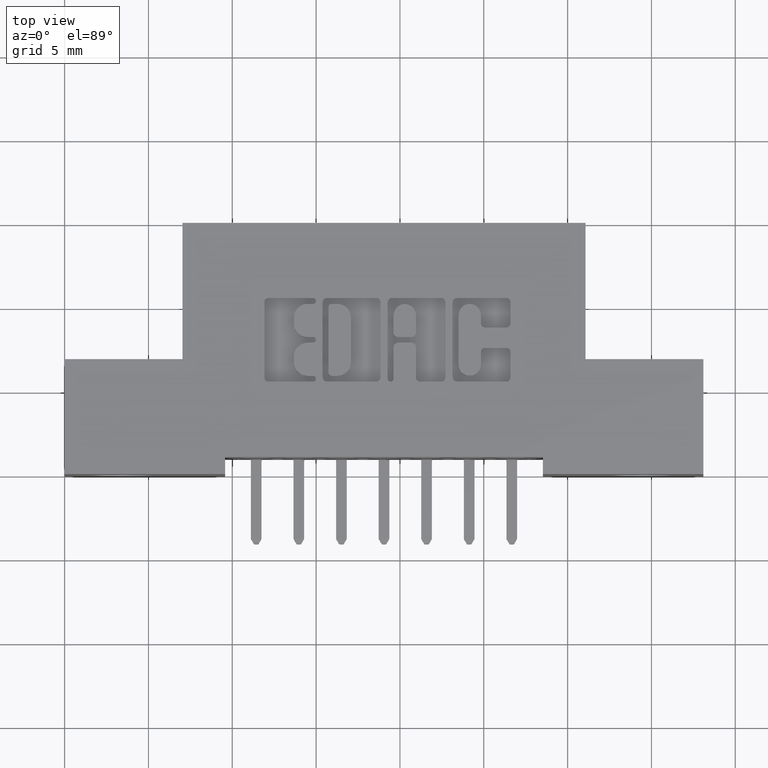
[diagram: clean part render]
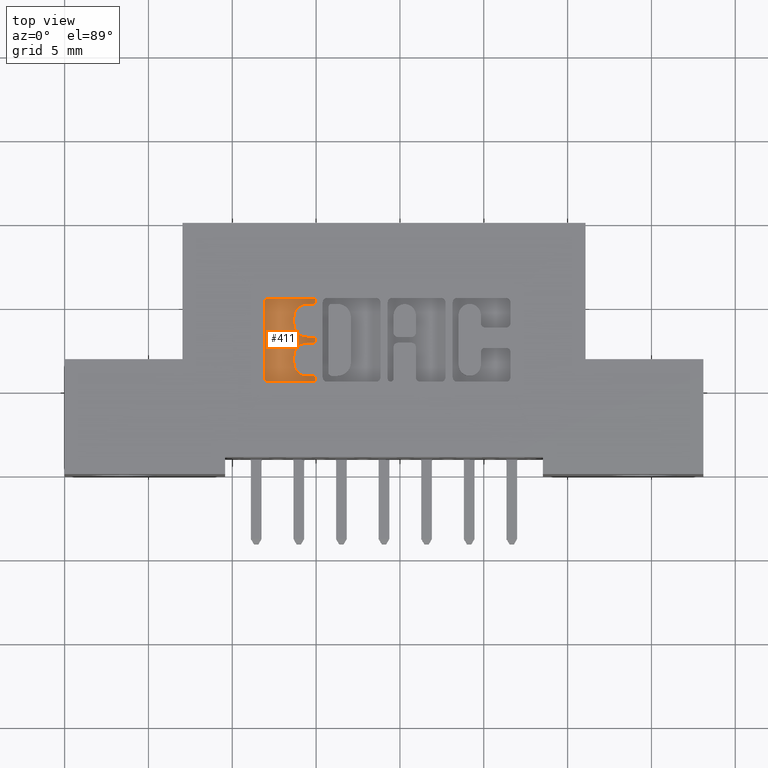
[diagram: same view with one face highlighted and labeled with its STEP entity id]
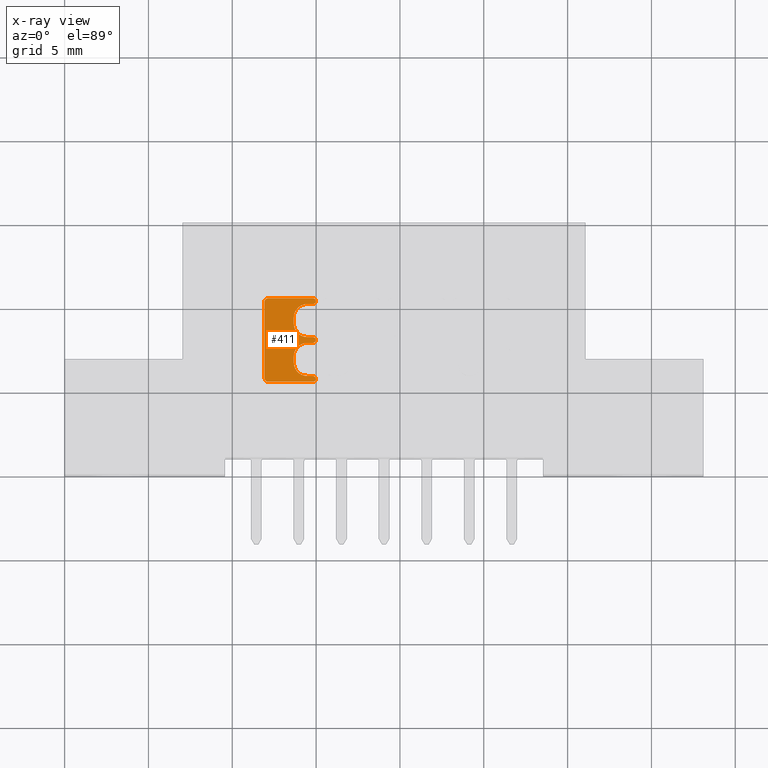
[diagram: x-ray of the same camera — body ghosted, the highlighted face saturated]
A machine part, top view. The second image highlights one B-rep face of the part: STEP entity #411.
The next image is the same camera in x-ray: the body ghosted, the highlighted face saturated — about 0% of this face is hidden behind the body in this view.
In plain terms, the highlighted planar face has unit normal (0, 0, 1).
Its self-contained STEP definition (entity closure, byte-faithful):
#50 = CARTESIAN_POINT ( 'NONE',  ( 0.5382269153529095600, 0.3532811137948583300, -0.01000000000000000000 ) ) ;
#58 = CIRCLE ( 'NONE', #2362, 0.03141014465217447500 ) ;
#129 = LINE ( 'NONE', #4063, #8107 ) ;
#167 = EDGE_LOOP ( 'NONE', ( #1020, #7557, #2675, #479, #7721, #1070, #2965, #7996, #667, #1128, #3104, #3904, #5091, #6752, #3723, #6283, #3916, #9225, #329, #2464, #903 ) ) ;
#240 = VECTOR ( 'NONE', #9830, 39.37007874015748100 ) ;
#247 = AXIS2_PLACEMENT_3D ( 'NONE', #6889, #2232, #7609 ) ;
#329 = ORIENTED_EDGE ( 'NONE', *, *, #7028, .T. ) ;
#382 = DIRECTION ( 'NONE',  ( -0.0000000000000000000, 0.0000000000000000000, 1.000000000000000000 ) ) ;
#411 = ADVANCED_FACE ( 'NONE', ( #5634 ), #5340, .T. ) ;
#479 = ORIENTED_EDGE ( 'NONE', *, *, #4244, .T. ) ;
#484 = EDGE_CURVE ( 'NONE', #2633, #4124, #5283, .T. ) ;
#516 = LINE ( 'NONE', #1669, #8477 ) ;
#594 = VERTEX_POINT ( 'NONE', #7124 ) ;
#667 = ORIENTED_EDGE ( 'NONE', *, *, #484, .T. ) ;
#701 = EDGE_CURVE ( 'NONE', #5477, #9557, #733, .T. ) ;
#709 = DIRECTION ( 'NONE',  ( 1.000000000000000000, 0.0000000000000000000, 0.0000000000000000000 ) ) ;
#733 = CIRCLE ( 'NONE', #8292, 0.03141014465215624000 ) ;
#781 = LINE ( 'NONE', #9266, #8730 ) ;
#845 = DIRECTION ( 'NONE',  ( -0.0000000000000000000, 0.0000000000000000000, 1.000000000000000000 ) ) ;
#889 = DIRECTION ( 'NONE',  ( -1.000000000000000000, 0.0000000000000000000, 0.0000000000000000000 ) ) ;
#903 = ORIENTED_EDGE ( 'NONE', *, *, #1353, .T. ) ;
#928 = CARTESIAN_POINT ( 'NONE',  ( 0.5831336065353512900, 0.4062857328953862800, -0.01000000000000000000 ) ) ;
#1006 = DIRECTION ( 'NONE',  ( 1.000000000000000000, 0.0000000000000000000, 0.0000000000000000000 ) ) ;
#1013 = VECTOR ( 'NONE', #889, 39.37007874015748100 ) ;
#1020 = ORIENTED_EDGE ( 'NONE', *, *, #2777, .F. ) ;
#1070 = ORIENTED_EDGE ( 'NONE', *, *, #5248, .T. ) ;
#1083 = AXIS2_PLACEMENT_3D ( 'NONE', #1100, #382, #6671 ) ;
#1097 = AXIS2_PLACEMENT_3D ( 'NONE', #1199, #6656, #2001 ) ;
#1100 = CARTESIAN_POINT ( 'NONE',  ( 0.0000000000000000000, 0.0000000000000000000, -0.01000000000000000000 ) ) ;
#1128 = ORIENTED_EDGE ( 'NONE', *, *, #4386, .T. ) ;
#1144 = EDGE_CURVE ( 'NONE', #3975, #3462, #3085, .T. ) ;
#1146 = CARTESIAN_POINT ( 'NONE',  ( 0.5831336065353512900, 0.4062857328953862800, -0.01000000000000000000 ) ) ;
#1188 = CIRCLE ( 'NONE', #1097, 0.006870969142663527000 ) ;
#1199 = CARTESIAN_POINT ( 'NONE',  ( 0.5831336065353099900, 0.3150000000000203200, -0.01000000000000000000 ) ) ;
#1224 = EDGE_CURVE ( 'NONE', #7891, #3462, #8441, .T. ) ;
#1241 = VERTEX_POINT ( 'NONE', #50 ) ;
#1269 = EDGE_CURVE ( 'NONE', #4696, #7891, #2098, .T. ) ;
#1308 = CIRCLE ( 'NONE', #7501, 0.03141014465221592800 ) ;
#1353 = EDGE_CURVE ( 'NONE', #1241, #6741, #7281, .T. ) ;
#1434 = DIRECTION ( 'NONE',  ( 1.000000000000000000, 0.0000000000000000000, 0.0000000000000000000 ) ) ;
#1640 = CARTESIAN_POINT ( 'NONE',  ( 0.5900045756779734900, 0.3150000000000203200, -0.01000000000000000000 ) ) ;
#1669 = CARTESIAN_POINT ( 'NONE',  ( 0.0000000000000000000, 0.3218709691426838700, -0.01000000000000000000 ) ) ;
#1729 = DIRECTION ( 'NONE',  ( 1.000000000000000000, 0.0000000000000000000, 0.0000000000000000000 ) ) ;
#1818 = CARTESIAN_POINT ( 'NONE',  ( 0.4788421106199379800, 0.4131567020380327300, -0.01000000000000000000 ) ) ;
#1907 = CIRCLE ( 'NONE', #4529, 0.006870969142648501700 ) ;
#1935 = DIRECTION ( 'NONE',  ( 1.000000000000000000, 0.0000000000000000000, 0.0000000000000000000 ) ) ;
#1940 = DIRECTION ( 'NONE',  ( 1.000000000000000000, 0.0000000000000000000, 0.0000000000000000000 ) ) ;
#2001 = DIRECTION ( 'NONE',  ( 1.000000000000000000, 0.0000000000000000000, 0.0000000000000000000 ) ) ;
#2098 = CIRCLE ( 'NONE', #7933, 0.006870969142662229500 ) ;
#2175 = EDGE_CURVE ( 'NONE', #8711, #7300, #4412, .T. ) ;
#2232 = DIRECTION ( 'NONE',  ( -0.0000000000000000000, 0.0000000000000000000, 1.000000000000000000 ) ) ;
#2339 = VERTEX_POINT ( 'NONE', #3387 ) ;
#2362 = AXIS2_PLACEMENT_3D ( 'NONE', #9851, #5404, #709 ) ;
#2404 = CIRCLE ( 'NONE', #247, 0.009815670203805868300 ) ;
#2410 = VERTEX_POINT ( 'NONE', #1818 ) ;
#2464 = ORIENTED_EDGE ( 'NONE', *, *, #5136, .F. ) ;
#2508 = VERTEX_POINT ( 'NONE', #5048 ) ;
#2633 = VERTEX_POINT ( 'NONE', #8933 ) ;
#2675 = ORIENTED_EDGE ( 'NONE', *, *, #9397, .T. ) ;
#2777 = EDGE_CURVE ( 'NONE', #3622, #6741, #1308, .T. ) ;
#2827 = CIRCLE ( 'NONE', #3727, 0.006870969142648501700 ) ;
#2828 = CARTESIAN_POINT ( 'NONE',  ( 0.5831336065353099900, 0.3218709691426838700, -0.01000000000000000000 ) ) ;
#2965 = ORIENTED_EDGE ( 'NONE', *, *, #8051, .T. ) ;
#2988 = DIRECTION ( 'NONE',  ( -0.0000000000000000000, 0.0000000000000000000, 1.000000000000000000 ) ) ;
#3014 = EDGE_CURVE ( 'NONE', #2339, #8711, #1188, .T. ) ;
#3085 = CIRCLE ( 'NONE', #4384, 0.03141014465218178200 ) ;
#3104 = ORIENTED_EDGE ( 'NONE', *, *, #1269, .T. ) ;
#3114 = LINE ( 'NONE', #5589, #1013 ) ;
#3288 = VERTEX_POINT ( 'NONE', #9186 ) ;
#3342 = CARTESIAN_POINT ( 'NONE',  ( 0.4690264404161154100, 0.2266589681657899300, -0.01000000000000000000 ) ) ;
#3387 = CARTESIAN_POINT ( 'NONE',  ( 0.5831336064153888100, 0.3081290308573568200, -0.01000000000000000000 ) ) ;
#3462 = VERTEX_POINT ( 'NONE', #9382 ) ;
#3502 = CARTESIAN_POINT ( 'NONE',  ( 0.5696370600050839600, 0.3081290308573568200, -0.01000000000000000000 ) ) ;
#3622 = VERTEX_POINT ( 'NONE', #5111 ) ;
#3623 = DIRECTION ( 'NONE',  ( 1.000000000000000000, 0.0000000000000000000, 0.0000000000000000000 ) ) ;
#3658 = DIRECTION ( 'NONE',  ( -0.0000000000000000000, 0.0000000000000000000, 1.000000000000000000 ) ) ;
#3689 = CARTESIAN_POINT ( 'NONE',  ( 0.5696370600051253700, 0.3680046191005197900, -0.01000000000000000000 ) ) ;
#3723 = ORIENTED_EDGE ( 'NONE', *, *, #701, .F. ) ;
#3727 = AXIS2_PLACEMENT_3D ( 'NONE', #928, #6386, #1729 ) ;
#3757 = DIRECTION ( 'NONE',  ( -0.0000000000000000000, 0.0000000000000000000, 1.000000000000000000 ) ) ;
#3904 = ORIENTED_EDGE ( 'NONE', *, *, #1224, .T. ) ;
#3916 = ORIENTED_EDGE ( 'NONE', *, *, #3014, .T. ) ;
#3975 = VERTEX_POINT ( 'NONE', #9204 ) ;
#3988 = CARTESIAN_POINT ( 'NONE',  ( -2.742036592681083100E-014, 0.2305852362472408400, -0.01000000000000000000 ) ) ;
#4063 = CARTESIAN_POINT ( 'NONE',  ( 0.4690264404161154100, 0.0000000000000000000, -0.01000000000000000000 ) ) ;
#4124 = VERTEX_POINT ( 'NONE', #7186 ) ;
#4238 = VECTOR ( 'NONE', #1434, 39.37007874015748100 ) ;
#4244 = EDGE_CURVE ( 'NONE', #8702, #7858, #1907, .T. ) ;
#4384 = AXIS2_PLACEMENT_3D ( 'NONE', #7032, #9715, #1006 ) ;
#4386 = EDGE_CURVE ( 'NONE', #4124, #4696, #6890, .T. ) ;
#4401 = CARTESIAN_POINT ( 'NONE',  ( 0.5696370600050839600, 0.2767188862052005200, -0.01000000000000000000 ) ) ;
#4412 = CIRCLE ( 'NONE', #5861, 0.006870969142663527000 ) ;
#4529 = AXIS2_PLACEMENT_3D ( 'NONE', #1146, #6595, #1940 ) ;
#4631 = EDGE_CURVE ( 'NONE', #3975, #9557, #781, .T. ) ;
#4696 = VERTEX_POINT ( 'NONE', #9362 ) ;
#4810 = DIRECTION ( 'NONE',  ( -1.000000000000000000, 0.0000000000000000000, 0.0000000000000000000 ) ) ;
#4827 = LINE ( 'NONE', #8807, #6618 ) ;
#4868 = DIRECTION ( 'NONE',  ( 0.0000000000000000000, -1.000000000000000000, 0.0000000000000000000 ) ) ;
#5004 = AXIS2_PLACEMENT_3D ( 'NONE', #5544, #845, #6304 ) ;
#5048 = CARTESIAN_POINT ( 'NONE',  ( 0.5831336065353512900, 0.3994147637527357100, -0.01000000000000000000 ) ) ;
#5085 = DIRECTION ( 'NONE',  ( 1.000000000000000000, 0.0000000000000000000, 0.0000000000000000000 ) ) ;
#5091 = ORIENTED_EDGE ( 'NONE', *, *, #1144, .F. ) ;
#5094 = EDGE_CURVE ( 'NONE', #5350, #2633, #2404, .T. ) ;
#5105 = EDGE_CURVE ( 'NONE', #3622, #2508, #8264, .T. ) ;
#5111 = CARTESIAN_POINT ( 'NONE',  ( 0.5696370600051253700, 0.3994147637527357100, -0.01000000000000000000 ) ) ;
#5136 = EDGE_CURVE ( 'NONE', #1241, #594, #58, .T. ) ;
#5248 = EDGE_CURVE ( 'NONE', #2410, #3288, #6040, .T. ) ;
#5268 = VECTOR ( 'NONE', #6824, 39.37007874015748100 ) ;
#5283 = LINE ( 'NONE', #7347, #8803 ) ;
#5340 = PLANE ( 'NONE',  #1083 ) ;
#5350 = VERTEX_POINT ( 'NONE', #3342 ) ;
#5404 = DIRECTION ( 'NONE',  ( -0.0000000000000000000, 0.0000000000000000000, 1.000000000000000000 ) ) ;
#5430 = CARTESIAN_POINT ( 'NONE',  ( 0.5831336064154143400, 0.2305852362473102000, -0.01000000000000000000 ) ) ;
#5477 = VERTEX_POINT ( 'NONE', #3502 ) ;
#5544 = CARTESIAN_POINT ( 'NONE',  ( 0.4788421106199379800, 0.4033410318342101100, -0.01000000000000000000 ) ) ;
#5589 = CARTESIAN_POINT ( 'NONE',  ( 0.0000000000000000000, 0.4131567020380327300, -0.01000000000000000000 ) ) ;
#5634 = FACE_OUTER_BOUND ( 'NONE', #167, .T. ) ;
#5861 = AXIS2_PLACEMENT_3D ( 'NONE', #8764, #7870, #7415 ) ;
#6040 = CIRCLE ( 'NONE', #5004, 0.009815670203822599700 ) ;
#6104 = CARTESIAN_POINT ( 'NONE',  ( 0.0000000000000000000, 0.3994147637527357100, -0.01000000000000000000 ) ) ;
#6283 = ORIENTED_EDGE ( 'NONE', *, *, #7225, .T. ) ;
#6304 = DIRECTION ( 'NONE',  ( 1.000000000000000000, 0.0000000000000000000, 0.0000000000000000000 ) ) ;
#6313 = DIRECTION ( 'NONE',  ( 0.0000000000000000000, 1.000000000000000000, -0.0000000000000000000 ) ) ;
#6335 = EDGE_CURVE ( 'NONE', #7858, #2410, #3114, .T. ) ;
#6386 = DIRECTION ( 'NONE',  ( -0.0000000000000000000, 0.0000000000000000000, 1.000000000000000000 ) ) ;
#6595 = DIRECTION ( 'NONE',  ( -0.0000000000000000000, 0.0000000000000000000, 1.000000000000000000 ) ) ;
#6618 = VECTOR ( 'NONE', #5085, 39.37007874015748100 ) ;
#6656 = DIRECTION ( 'NONE',  ( -0.0000000000000000000, 0.0000000000000000000, 1.000000000000000000 ) ) ;
#6671 = DIRECTION ( 'NONE',  ( 1.000000000000000000, 0.0000000000000000000, 0.0000000000000000000 ) ) ;
#6713 = DIRECTION ( 'NONE',  ( -0.0000000000000000000, 0.0000000000000000000, 1.000000000000000000 ) ) ;
#6741 = VERTEX_POINT ( 'NONE', #7487 ) ;
#6752 = ORIENTED_EDGE ( 'NONE', *, *, #4631, .T. ) ;
#6824 = DIRECTION ( 'NONE',  ( 0.0000000000000000000, 1.000000000000000000, -0.0000000000000000000 ) ) ;
#6889 = CARTESIAN_POINT ( 'NONE',  ( 0.4788421106199221600, 0.2266589681657899300, -0.01000000000000000000 ) ) ;
#6890 = CIRCLE ( 'NONE', #7573, 0.006870969142662229500 ) ;
#7028 = EDGE_CURVE ( 'NONE', #7300, #594, #516, .T. ) ;
#7032 = CARTESIAN_POINT ( 'NONE',  ( 0.5696370600051095000, 0.2619953808994903700, -0.01000000000000000000 ) ) ;
#7072 = CARTESIAN_POINT ( 'NONE',  ( 0.5900045756779998000, 0.4062857328953862800, -0.01000000000000000000 ) ) ;
#7124 = CARTESIAN_POINT ( 'NONE',  ( 0.5696370600050839600, 0.3218709691426838700, -0.01000000000000000000 ) ) ;
#7186 = CARTESIAN_POINT ( 'NONE',  ( 0.5831336064154143400, 0.2168432979619857000, -0.01000000000000000000 ) ) ;
#7225 = EDGE_CURVE ( 'NONE', #5477, #2339, #4827, .T. ) ;
#7281 = LINE ( 'NONE', #9429, #5268 ) ;
#7300 = VERTEX_POINT ( 'NONE', #2828 ) ;
#7347 = CARTESIAN_POINT ( 'NONE',  ( -1.562019070573206700E-015, 0.2168432979619815100, -0.01000000000000000000 ) ) ;
#7415 = DIRECTION ( 'NONE',  ( 1.000000000000000000, 0.0000000000000000000, 0.0000000000000000000 ) ) ;
#7487 = CARTESIAN_POINT ( 'NONE',  ( 0.5382269153529095600, 0.3680046191005197900, -0.01000000000000000000 ) ) ;
#7501 = AXIS2_PLACEMENT_3D ( 'NONE', #3689, #3658, #3623 ) ;
#7557 = ORIENTED_EDGE ( 'NONE', *, *, #5105, .T. ) ;
#7562 = CARTESIAN_POINT ( 'NONE',  ( 0.5831336065353355200, 0.2237142671046479200, -0.01000000000000000000 ) ) ;
#7573 = AXIS2_PLACEMENT_3D ( 'NONE', #7562, #2988, #8302 ) ;
#7609 = DIRECTION ( 'NONE',  ( 1.000000000000000000, 0.0000000000000000000, 0.0000000000000000000 ) ) ;
#7721 = ORIENTED_EDGE ( 'NONE', *, *, #6335, .T. ) ;
#7858 = VERTEX_POINT ( 'NONE', #9117 ) ;
#7870 = DIRECTION ( 'NONE',  ( -0.0000000000000000000, 0.0000000000000000000, 1.000000000000000000 ) ) ;
#7891 = VERTEX_POINT ( 'NONE', #5430 ) ;
#7933 = AXIS2_PLACEMENT_3D ( 'NONE', #9677, #6713, #8295 ) ;
#7996 = ORIENTED_EDGE ( 'NONE', *, *, #5094, .T. ) ;
#8051 = EDGE_CURVE ( 'NONE', #3288, #5350, #129, .T. ) ;
#8107 = VECTOR ( 'NONE', #4868, 39.37007874015748100 ) ;
#8264 = LINE ( 'NONE', #6104, #4238 ) ;
#8292 = AXIS2_PLACEMENT_3D ( 'NONE', #4401, #3757, #1935 ) ;
#8295 = DIRECTION ( 'NONE',  ( 1.000000000000000000, 0.0000000000000000000, 0.0000000000000000000 ) ) ;
#8302 = DIRECTION ( 'NONE',  ( 1.000000000000000000, 0.0000000000000000000, 0.0000000000000000000 ) ) ;
#8441 = LINE ( 'NONE', #3988, #240 ) ;
#8477 = VECTOR ( 'NONE', #4810, 39.37007874015748100 ) ;
#8702 = VERTEX_POINT ( 'NONE', #7072 ) ;
#8711 = VERTEX_POINT ( 'NONE', #1640 ) ;
#8730 = VECTOR ( 'NONE', #6313, 39.37007874015748100 ) ;
#8764 = CARTESIAN_POINT ( 'NONE',  ( 0.5831336065353099900, 0.3150000000000203200, -0.01000000000000000000 ) ) ;
#8795 = CARTESIAN_POINT ( 'NONE',  ( 0.5382269153529277700, 0.2767188862052005200, -0.01000000000000000000 ) ) ;
#8803 = VECTOR ( 'NONE', #9528, 39.37007874015748100 ) ;
#8807 = CARTESIAN_POINT ( 'NONE',  ( 0.0000000000000000000, 0.3081290308573568200, -0.01000000000000000000 ) ) ;
#8933 = CARTESIAN_POINT ( 'NONE',  ( 0.4788421106199185500, 0.2168432979619849500, -0.01000000000000000000 ) ) ;
#9117 = CARTESIAN_POINT ( 'NONE',  ( 0.5831336065353512900, 0.4131567020380327300, -0.01000000000000000000 ) ) ;
#9186 = CARTESIAN_POINT ( 'NONE',  ( 0.4690264404161154100, 0.4033410318342101100, -0.01000000000000000000 ) ) ;
#9204 = CARTESIAN_POINT ( 'NONE',  ( 0.5382269153529277700, 0.2619953808994903700, -0.01000000000000000000 ) ) ;
#9225 = ORIENTED_EDGE ( 'NONE', *, *, #2175, .T. ) ;
#9266 = CARTESIAN_POINT ( 'NONE',  ( 0.5382269153529277700, 0.0000000000000000000, -0.01000000000000000000 ) ) ;
#9362 = CARTESIAN_POINT ( 'NONE',  ( 0.5900045756779976900, 0.2237142671046479200, -0.01000000000000000000 ) ) ;
#9382 = CARTESIAN_POINT ( 'NONE',  ( 0.5696370600051095000, 0.2305852362473085900, -0.01000000000000000000 ) ) ;
#9397 = EDGE_CURVE ( 'NONE', #2508, #8702, #2827, .T. ) ;
#9429 = CARTESIAN_POINT ( 'NONE',  ( 0.5382269153529095600, 0.0000000000000000000, -0.01000000000000000000 ) ) ;
#9528 = DIRECTION ( 'NONE',  ( 1.000000000000000000, 7.203446383881649800E-015, 0.0000000000000000000 ) ) ;
#9557 = VERTEX_POINT ( 'NONE', #8795 ) ;
#9677 = CARTESIAN_POINT ( 'NONE',  ( 0.5831336065353355200, 0.2237142671046479200, -0.01000000000000000000 ) ) ;
#9715 = DIRECTION ( 'NONE',  ( -0.0000000000000000000, 0.0000000000000000000, 1.000000000000000000 ) ) ;
#9830 = DIRECTION ( 'NONE',  ( -1.000000000000000000, -1.189163988687022500E-013, 0.0000000000000000000 ) ) ;
#9851 = CARTESIAN_POINT ( 'NONE',  ( 0.5696370600050839600, 0.3532811137948583300, -0.01000000000000000000 ) ) ;